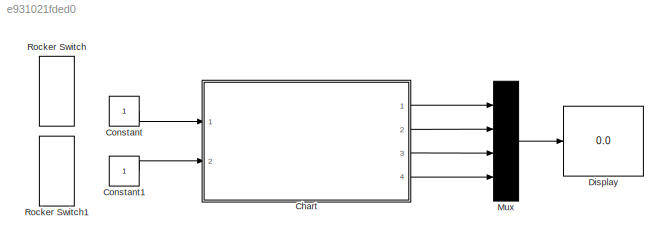
MODEL slx_e931021fded0
KIND model
CONFIG AbsTol = auto
CONFIG EnableMultiTasking = off
CONFIG FixedStep = auto
CONFIG MaxStep = auto
CONFIG MinStep = auto
CONFIG RelTol = 1e-3
CONFIG SampleTimeConstraint = Unconstrained
CONFIG SolverName = VariableStepAuto
CONFIG StartTime = 0.0
CONFIG StopTime = 85.0
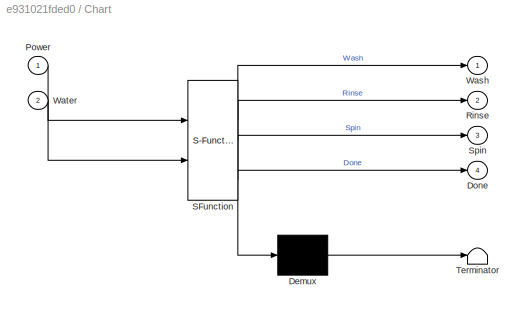
BLOCK [SubSystem] Chart
  ErrorFcn = Stateflow.Translate.translate
  PermitHierarchicalResolution = ExplicitOnly
  Ports = [2, 4]
  RequestExecContextInheritance = off
  SFBlockType = Chart
  TreatAsAtomicUnit = on
BLOCK [Demux] Chart/ Demux 
  Outputs = 1
  Ports = [1, 1]
BLOCK [S-Function] Chart/ SFunction 
  EnableBusSupport = on
  FunctionName = sf_sfun
  PortCounts = [2 5]
  Ports = [2, 5]
  SFcnIsStateOwnerBlock = off
  SFunctionDeploymentMode = off
  Tag = Stateflow S-Function 3
BLOCK [Terminator] Chart/ Terminator 
BLOCK [Outport] Chart/Done
  Port = 4
BLOCK [Inport] Chart/Power
BLOCK [Outport] Chart/Rinse
  Port = 2
BLOCK [Outport] Chart/Spin
  Port = 3
BLOCK [Outport] Chart/Wash
BLOCK [Inport] Chart/Water
  Port = 2
BLOCK [Constant] Constant
BLOCK [Constant] Constant1
BLOCK [Display] Display
  Decimation = 1
  Ports = [1]
BLOCK [Mux] Mux
  DisplayOption = bar
  Ports = [4, 1]
BLOCK [RockerSwitchBlock] Rocker Switch
BLOCK [RockerSwitchBlock] Rocker Switch1
LINE Chart:1 -> Mux:1
LINE Chart:2 -> Mux:2
LINE Chart:3 -> Mux:3
LINE Chart:4 -> Mux:4
LINE Constant1:1 -> Chart:2
LINE Constant:1 -> Chart:1
LINE Mux:1 -> Display:1
CHART Chart states=6 transitions=6
  STATE_LABEL 'Water'
  STATE_LABEL 'Power\n'
  STATE_LABEL 'Wash\nentry:\nWash=1;'
  STATE_LABEL 'Rinse\nentry:\nRinse=1;'
  STATE_LABEL 'Done\nentry:\nDone=1;'
  STATE_LABEL 'Spin\nentry:\nSpin=1;'
CHART  states=0 transitions=0
